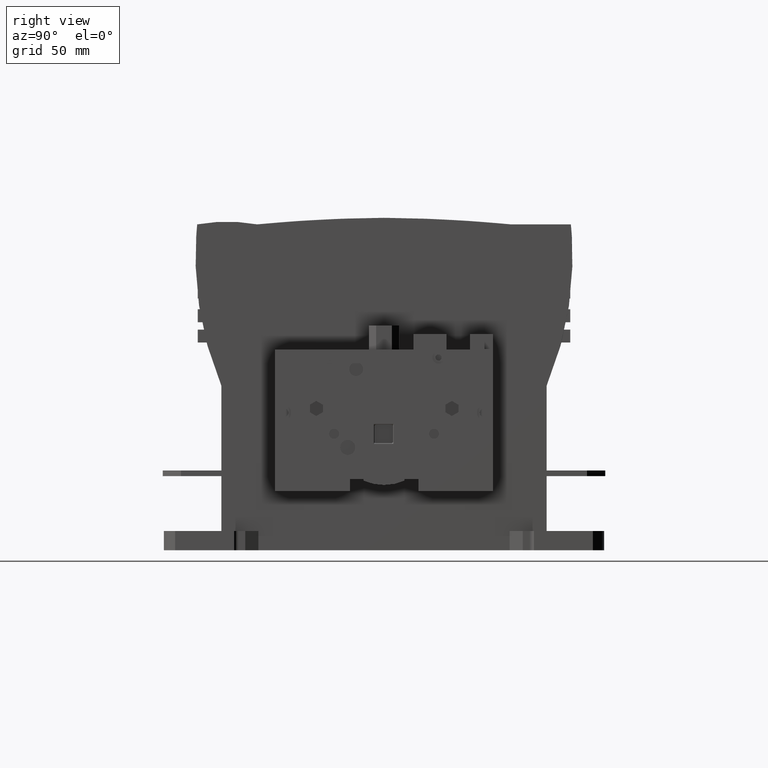
[diagram: clean part render]
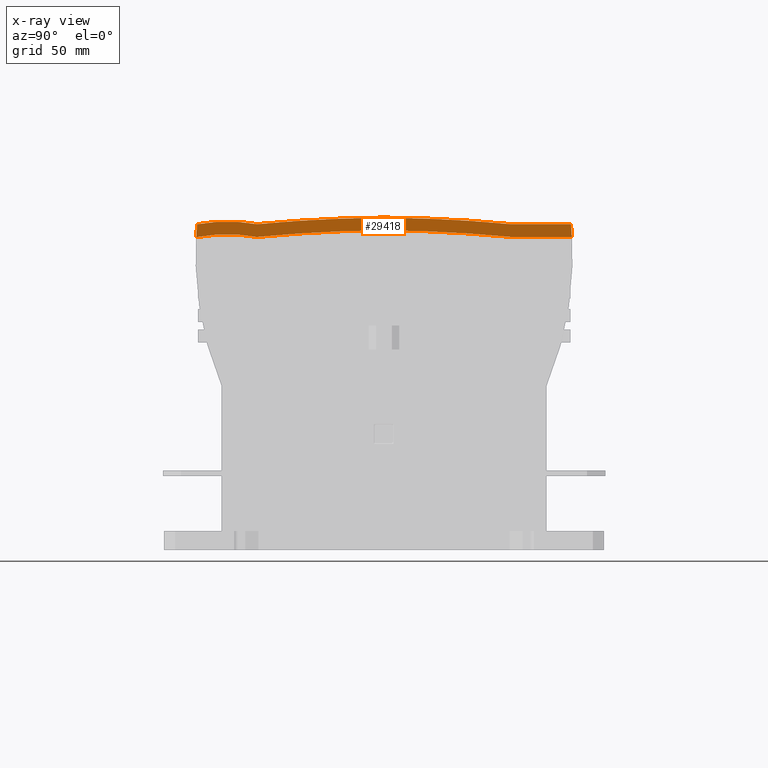
[diagram: x-ray — body ghosted, one internal face saturated and labeled with its STEP entity id]
A machine part, right view, then the same camera in x-ray: the body is ghosted and one INTERNAL B-rep face — a face not visible from any outside direction — is saturated and labeled: STEP entity #29418.
In plain terms, the highlighted planar face has unit normal (-1, 0, 0).
Its self-contained STEP definition (entity closure, byte-faithful):
#45=CARTESIAN_POINT('',(3.3274E1,-7.798528822828E1,6.952712063808E1));
#46=DIRECTION('',(1.E0,0.E0,0.E0));
#47=DIRECTION('',(0.E0,9.981219021080E-1,6.125902816961E-2));
#48=AXIS2_PLACEMENT_3D('',#45,#46,#47);
#1426=DIRECTION('',(0.E0,-1.E0,0.E0));
#1427=VECTOR('',#1426,3.2512E1);
#1428=CARTESIAN_POINT('',(3.3274E1,1.01214E2,8.7376E1));
#1429=LINE('',#1428,#1427);
#1741=DIRECTION('',(-1.295446266289E-14,1.E0,0.E0));
#1742=VECTOR('',#1741,5.484926347392E-1);
#1743=CARTESIAN_POINT('',(3.3274E1,1.01214E2,8.055901398503E1));
#1744=LINE('',#1743,#1742);
#1745=DIRECTION('',(0.E0,1.E0,0.E0));
#1746=VECTOR('',#1745,3.283802809294E1);
#1747=CARTESIAN_POINT('',(3.3274E1,6.837597190706E1,8.055901398503E1));
#1748=LINE('',#1747,#1746);
#1749=CARTESIAN_POINT('',(3.3274E1,-6.336892889530E0,-6.970429980832E2));
#1750=DIRECTION('',(-1.E0,0.E0,0.E0));
#1751=DIRECTION('',(0.E0,8.111918431521E-3,9.999670978484E-1));
#1752=AXIS2_PLACEMENT_3D('',#1749,#1750,#1751);
#1754=CARTESIAN_POINT('',(3.3274E1,6.336892889530E0,-6.970429980832E2));
#1755=DIRECTION('',(-1.E0,0.E0,0.E0));
#1756=DIRECTION('',(0.E0,-9.645632164945E-2,9.953372182401E-1));
#1757=AXIS2_PLACEMENT_3D('',#1754,#1755,#1756);
#1759=CARTESIAN_POINT('',(3.3274E1,-8.4958E1,-1.489392949111E0));
#1760=DIRECTION('',(-1.E0,0.E0,0.E0));
#1761=DIRECTION('',(0.E0,-1.870788464216E-1,9.823449013567E-1));
#1762=AXIS2_PLACEMENT_3D('',#1759,#1760,#1761);
#1764=DIRECTION('',(0.E0,1.E0,0.E0));
#1765=VECTOR('',#1764,1.179103528767E0);
#1766=CARTESIAN_POINT('',(3.3274E1,-1.017624926347E2,8.055901398503E1));
#1767=LINE('',#1766,#1765);
#1789=CARTESIAN_POINT('',(3.3274E1,-6.336892889530E0,-6.970429980832E2));
#1790=DIRECTION('',(1.E0,0.E0,0.E0));
#1791=DIRECTION('',(0.E0,9.522702143341E-2,9.954555813239E-1));
#1792=AXIS2_PLACEMENT_3D('',#1789,#1790,#1791);
#4413=CARTESIAN_POINT('',(3.3274E1,6.336892889530E0,-6.970429980832E2));
#4414=DIRECTION('',(1.E0,0.E0,0.E0));
#4415=DIRECTION('',(0.E0,-8.041742245596E-3,9.999676646680E-1));
#4416=AXIS2_PLACEMENT_3D('',#4413,#4414,#4415);
#7037=CARTESIAN_POINT('',(3.3274E1,-8.4958E1,-1.489392949112E0));
#7038=DIRECTION('',(1.E0,0.E0,0.E0));
#7039=DIRECTION('',(0.E0,1.799424396724E-1,9.836771413450E-1));
#7040=AXIS2_PLACEMENT_3D('',#7037,#7038,#7039);
#7136=CARTESIAN_POINT('',(3.3274E1,7.798528822828E1,6.952712063808E1));
#7137=DIRECTION('',(1.E0,0.E0,0.E0));
#7138=DIRECTION('',(0.E0,-9.950761759842E-1,9.911308686915E-2));
#7139=AXIS2_PLACEMENT_3D('',#7136,#7137,#7138);
#20940=CARTESIAN_POINT('',(3.3274E1,-1.005833891060E2,8.055901398503E1));
#20942=VERTEX_POINT('',#20940);
#20945=CARTESIAN_POINT('',(3.3274E1,-6.901314717449E1,8.049752999301E1));
#20947=VERTEX_POINT('',#20945);
#20949=CARTESIAN_POINT('',(3.3274E1,6.662226326171E-12,8.411431329984E1));
#20951=VERTEX_POINT('',#20949);
#20954=CARTESIAN_POINT('',(3.3274E1,6.837597190706E1,8.055901398503E1));
#20955=VERTEX_POINT('',#20954);
#20958=CARTESIAN_POINT('',(3.3274E1,1.01214E2,8.055901398503E1));
#20959=VERTEX_POINT('',#20958);
#20964=CARTESIAN_POINT('',(3.3274E1,1.017624926347E2,8.055901398503E1));
#20965=CARTESIAN_POINT('',(3.3274E1,1.01214E2,8.7376E1));
#20966=VERTEX_POINT('',#20964);
#20967=VERTEX_POINT('',#20965);
#20970=CARTESIAN_POINT('',(3.3274E1,6.8702E1,8.7376E1));
#20971=VERTEX_POINT('',#20970);
#20974=CARTESIAN_POINT('',(3.3274E1,9.947598300641E-14,9.093152167518E1));
#20975=VERTEX_POINT('',#20974);
#20978=CARTESIAN_POINT('',(3.3274E1,-6.8702E1,8.7376E1));
#20979=VERTEX_POINT('',#20978);
#20982=CARTESIAN_POINT('',(3.3274E1,-1.01214E2,8.7376E1));
#20983=VERTEX_POINT('',#20982);
#20986=CARTESIAN_POINT('',(3.3274E1,-1.017624926347E2,8.055901398503E1));
#20987=VERTEX_POINT('',#20986);
#29389=CARTESIAN_POINT('',(3.3274E1,-1.021007117717E2,8.055901398503E1));
#29390=DIRECTION('',(-1.E0,0.E0,0.E0));
#29391=DIRECTION('',(0.E0,0.E0,1.E0));
#29392=AXIS2_PLACEMENT_3D('',#29389,#29390,#29391);
#29393=PLANE('',#29392);
#29394=ORIENTED_EDGE('',*,*,#27095,.F.);
#29396=ORIENTED_EDGE('',*,*,#29395,.F.);
#29398=ORIENTED_EDGE('',*,*,#29397,.F.);
#29400=ORIENTED_EDGE('',*,*,#29399,.F.);
#29402=ORIENTED_EDGE('',*,*,#29401,.F.);
#29404=ORIENTED_EDGE('',*,*,#29403,.F.);
#29406=ORIENTED_EDGE('',*,*,#29405,.F.);
#29408=ORIENTED_EDGE('',*,*,#29407,.F.);
#29410=ORIENTED_EDGE('',*,*,#29409,.F.);
#29412=ORIENTED_EDGE('',*,*,#29411,.F.);
#29414=ORIENTED_EDGE('',*,*,#29413,.F.);
#29415=ORIENTED_EDGE('',*,*,#28888,.F.);
#29416=EDGE_LOOP('',(#29394,#29396,#29398,#29400,#29402,#29404,#29406,#29408,
#29410,#29412,#29414,#29415));
#29417=FACE_OUTER_BOUND('',#29416,.F.);
#29418=ADVANCED_FACE('',(#29417),#29393,.F.);
#49=CIRCLE('',#48,1.80086E2);
#1753=CIRCLE('',#1752,7.811830139850E2);
#1758=CIRCLE('',#1757,7.811830139850E2);
#1763=CIRCLE('',#1762,8.352301398503E1);
#1793=CIRCLE('',#1792,7.88E2);
#4417=CIRCLE('',#4416,7.88E2);
#7041=CIRCLE('',#7040,9.034E1);
#7140=CIRCLE('',#7139,1.80086E2);
#27095=EDGE_CURVE('',#20966,#20967,#49,.T.);
#28888=EDGE_CURVE('',#20967,#20971,#1429,.T.);
#29395=EDGE_CURVE('',#20959,#20966,#1744,.T.);
#29397=EDGE_CURVE('',#20955,#20959,#1748,.T.);
#29399=EDGE_CURVE('',#20951,#20955,#1753,.T.);
#29401=EDGE_CURVE('',#20947,#20951,#1758,.T.);
#29403=EDGE_CURVE('',#20942,#20947,#1763,.T.);
#29405=EDGE_CURVE('',#20987,#20942,#1767,.T.);
#29407=EDGE_CURVE('',#20983,#20987,#7140,.T.);
#29409=EDGE_CURVE('',#20979,#20983,#7041,.T.);
#29411=EDGE_CURVE('',#20975,#20979,#4417,.T.);
#29413=EDGE_CURVE('',#20971,#20975,#1793,.T.);